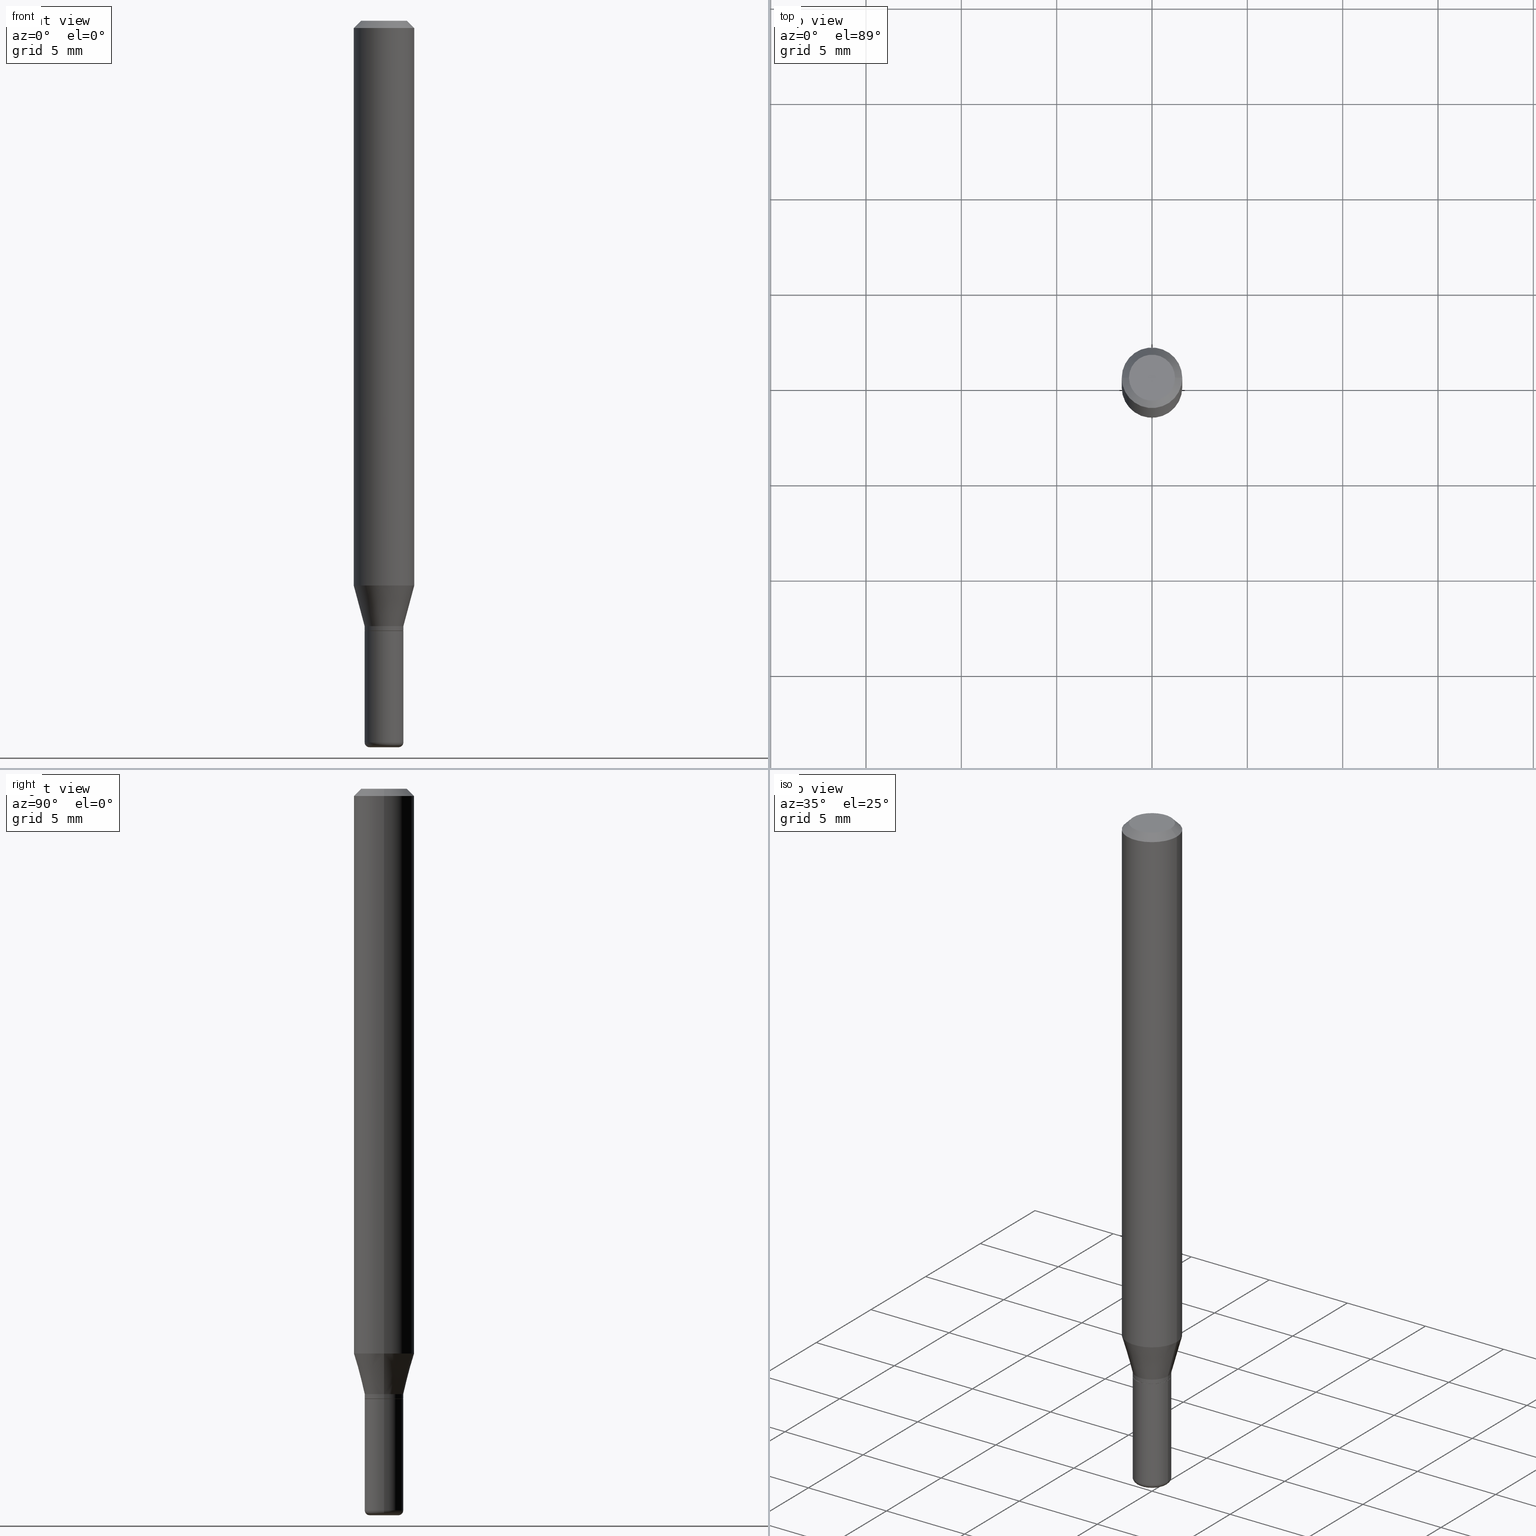
[diagram: canonical four-view strip — front | top / right | iso, engineering-drawing reading convention]
A machine part, canonical four-view strip (front | top / right | iso — engineering-drawing reading convention). The complete STEP part file that produces these views, byte-faithful:
ISO-10303-21;
HEADER;
FILE_DESCRIPTION (( 'STEP AP203' ),
    '1' );
FILE_NAME ('08562.STEP',
    '2024-02-29T19:48:05',
    ( '' ),
    ( '' ),
    'SwSTEP 2.0',
    'SolidWorks 2023',
    '' );
FILE_SCHEMA (( 'CONFIG_CONTROL_DESIGN' ));
ENDSEC;

DATA;
#1 = CARTESIAN_POINT ( 'NONE',  ( -0.02999999999999999889, -4.989144374148257860E-15, -1.490000000000000213 ) ) ;
#2 = EDGE_CURVE ( 'NONE', #372, #59, #259, .T. ) ;
#3 = COORDINATED_UNIVERSAL_TIME_OFFSET ( 5, 0, .BEHIND. ) ;
#4 = AXIS2_PLACEMENT_3D ( 'NONE', #15, #496, #107 ) ;
#5 = CIRCLE ( 'NONE', #278, 0.03999999999999995920 ) ;
#6 = FACE_OUTER_BOUND ( 'NONE', #110, .T. ) ;
#7 = DIRECTION ( 'NONE',  ( 1.000000000000000000, -6.982962677686279332E-15, 0.000000000000000000 ) ) ;
#8 = ADVANCED_FACE ( 'NONE', ( #97 ), #436, .T. ) ;
#9 = ORIENTED_EDGE ( 'NONE', *, *, #330, .T. ) ;
#10 = VERTEX_POINT ( 'NONE', #253 ) ;
#11 = ORIENTED_EDGE ( 'NONE', *, *, #74, .T. ) ;
#12 = EDGE_CURVE ( 'NONE', #452, #290, #286, .T. ) ;
#13 = ORIENTED_EDGE ( 'NONE', *, *, #2, .T. ) ;
#14 = EDGE_LOOP ( 'NONE', ( #371, #332, #105, #285 ) ) ;
#15 = CARTESIAN_POINT ( 'NONE',  ( 3.316907271900976589E-16, 0.04750000000000000749, -2.925296391183627249E-17 ) ) ;
#16 = CIRCLE ( 'NONE', #517, 0.06250000000000000000 ) ;
#17 = VERTEX_POINT ( 'NONE', #291 ) ;
#18 = PLANE ( 'NONE',  #138 ) ;
#19 = CARTESIAN_POINT ( 'NONE',  ( -0.03999999999999997308, 2.842170943040398830E-16, -1.967574036101961108E-30 ) ) ;
#20 = ORIENTED_EDGE ( 'NONE', *, *, #506, .T. ) ;
#21 = ORIENTED_EDGE ( 'NONE', *, *, #237, .F. ) ;
#22 = DIRECTION ( 'NONE',  ( 1.000000000000000000, -6.982962677686276177E-15, 0.000000000000000000 ) ) ;
#23 = ORIENTED_EDGE ( 'NONE', *, *, #337, .T. ) ;
#24 = EDGE_LOOP ( 'NONE', ( #189, #256, #13, #64 ) ) ;
#25 = CARTESIAN_POINT ( 'NONE',  ( -6.680649051745406845E-45, 9.538196290434862081E-31, 2.731847993664263218E-16 ) ) ;
#26 = FACE_OUTER_BOUND ( 'NONE', #143, .T. ) ;
#27 = DIRECTION ( 'NONE',  ( 0.000000000000000000, 0.000000000000000000, 1.000000000000000000 ) ) ;
#28 = VECTOR ( 'NONE', #324, 39.37007874015748143 ) ;
#29 = AXIS2_PLACEMENT_3D ( 'NONE', #312, #35, #82 ) ;
#30 = LOCAL_TIME ( 14, 48, 5.000000000000000000, #512 ) ;
#31 = ORIENTED_EDGE ( 'NONE', *, *, #506, .F. ) ;
#32 = CARTESIAN_POINT ( 'NONE',  ( 3.081290695793272291E-29, -4.399266486942364120E-15, -1.260000000000000231 ) ) ;
#33 = PERSON_AND_ORGANIZATION ( #322, #232 ) ;
#34 = LINE ( 'NONE', #471, #407 ) ;
#35 = DIRECTION ( 'NONE',  ( -2.445468806185136597E-29, 3.491481338843145583E-15, 1.000000000000000000 ) ) ;
#36 = EDGE_CURVE ( 'NONE', #319, #372, #349, .T. ) ;
#37 = DIRECTION ( 'NONE',  ( 1.000000000000000000, -6.982962677686265922E-15, 4.876176775795935793E-29 ) ) ;
#38 = PERSON_AND_ORGANIZATION_ROLE ( 'design_owner' ) ;
#39 = APPLICATION_CONTEXT ( 'configuration controlled 3d designs of mechanical parts and assemblies' ) ;
#40 = DIRECTION ( 'NONE',  ( -2.445468806185136597E-29, 3.491481338843145583E-15, 1.000000000000000000 ) ) ;
#41 = CONICAL_SURFACE ( 'NONE', #224, 0.03949999999999997263, 0.7853981633972775267 ) ;
#42 = CARTESIAN_POINT ( 'NONE',  ( 3.081290695793272291E-29, -4.399266486942364120E-15, -1.260000000000000231 ) ) ;
#43 =( NAMED_UNIT ( * ) SI_UNIT ( $, .STERADIAN. ) SOLID_ANGLE_UNIT ( ) );
#44 = LINE ( 'NONE', #515, #431 ) ;
#45 = DIRECTION ( 'NONE',  ( -2.445468806185136597E-29, 3.491481338843145583E-15, 1.000000000000000000 ) ) ;
#46 = CC_DESIGN_PERSON_AND_ORGANIZATION_ASSIGNMENT ( #113, #38, ( #317 ) ) ;
#47 = AXIS2_PLACEMENT_3D ( 'NONE', #103, #254, #112 ) ;
#48 = DIRECTION ( 'NONE',  ( -2.445468806185136877E-29, 3.491481338843145188E-15, 1.000000000000000000 ) ) ;
#49 = ADVANCED_FACE ( 'NONE', ( #368 ), #18, .F. ) ;
#50 = DIRECTION ( 'NONE',  ( -2.445468806185136597E-29, 3.491481338843145583E-15, 1.000000000000000000 ) ) ;
#51 = EDGE_CURVE ( 'NONE', #367, #111, #343, .T. ) ;
#52 = FACE_OUTER_BOUND ( 'NONE', #492, .T. ) ;
#53 = AXIS2_PLACEMENT_3D ( 'NONE', #146, #176, #288 ) ;
#54 = ORIENTED_EDGE ( 'NONE', *, *, #98, .F. ) ;
#55 = APPROVAL ( #399, 'UNSPECIFIED' ) ;
#56 = DIRECTION ( 'NONE',  ( 1.000000000000000000, -6.982962677686264344E-15, 0.000000000000000000 ) ) ;
#57 = ORIENTED_EDGE ( 'NONE', *, *, #86, .F. ) ;
#58 = ORIENTED_EDGE ( 'NONE', *, *, #499, .F. ) ;
#59 = VERTEX_POINT ( 'NONE', #66 ) ;
#60 = DIRECTION ( 'NONE',  ( 1.000000000000000000, -6.982962677686279332E-15, 0.000000000000000000 ) ) ;
#61 = APPROVAL ( #465, 'UNSPECIFIED' ) ;
#62 = CARTESIAN_POINT ( 'NONE',  ( 3.081290695793272291E-29, -4.399266486942364120E-15, -1.260000000000000231 ) ) ;
#63 = VECTOR ( 'NONE', #130, 39.37007874015748143 ) ;
#64 = ORIENTED_EDGE ( 'NONE', *, *, #333, .F. ) ;
#65 = CARTESIAN_POINT ( 'NONE',  ( 0.03999999999999995920, -4.643670180661383298E-15, -1.250000000000000000 ) ) ;
#66 = CARTESIAN_POINT ( 'NONE',  ( 0.06250000000000000000, -4.507603161528896392E-15, -1.166028856829700144 ) ) ;
#67 = ORIENTED_EDGE ( 'NONE', *, *, #126, .F. ) ;
#68 = FACE_OUTER_BOUND ( 'NONE', #485, .T. ) ;
#69 = ADVANCED_FACE ( 'NONE', ( #218 ), #414, .F. ) ;
#70 = DATE_AND_TIME ( #424, #194 ) ;
#71 = ORIENTED_EDGE ( 'NONE', *, *, #499, .T. ) ;
#72 = DIRECTION ( 'NONE',  ( 1.000000000000000000, -6.982962677686266711E-15, 4.876176775795935793E-29 ) ) ;
#73 = ORIENTED_EDGE ( 'NONE', *, *, #474, .F. ) ;
#74 = EDGE_CURVE ( 'NONE', #420, #106, #391, .T. ) ;
#75 = CARTESIAN_POINT ( 'NONE',  ( 0.000000000000000000, 0.000000000000000000, 0.000000000000000000 ) ) ;
#76 = VECTOR ( 'NONE', #432, 39.37007874015748143 ) ;
#77 = CARTESIAN_POINT ( 'NONE',  ( 0.03000000000000000583, -5.446710888595306494E-15, -1.500000000000000222 ) ) ;
#78 = CIRCLE ( 'NONE', #356, 0.04750000000000000749 ) ;
#79 = AXIS2_PLACEMENT_3D ( 'NONE', #75, #27, #201 ) ;
#80 = DIRECTION ( 'NONE',  ( -2.445468806185136597E-29, 3.491481338843145583E-15, 1.000000000000000000 ) ) ;
#81 = CARTESIAN_POINT ( 'NONE',  ( 3.081290695793272291E-29, -4.399266486942364120E-15, -1.260000000000000231 ) ) ;
#82 = DIRECTION ( 'NONE',  ( 1.000000000000000000, -6.982962677686268288E-15, 4.876176775795935793E-29 ) ) ;
#83 = CARTESIAN_POINT ( 'NONE',  ( 0.04000000000000000083, -4.678584994049814947E-15, -1.260000000000000231 ) ) ;
#84 = CIRCLE ( 'NONE', #53, 0.009999999999999948166 ) ;
#85 = AXIS2_PLACEMENT_3D ( 'NONE', #352, #316, #477 ) ;
#86 = EDGE_CURVE ( 'NONE', #17, #420, #374, .T. ) ;
#87 = CC_DESIGN_APPROVAL ( #345, ( #304 ) ) ;
#88 = APPROVAL_ROLE ( '' ) ;
#89 = CARTESIAN_POINT ( 'NONE',  ( 2.851487196488746564E-29, -4.071167994173503933E-15, -1.166028856829700144 ) ) ;
#90 = FACE_OUTER_BOUND ( 'NONE', #250, .T. ) ;
#91 = CARTESIAN_POINT ( 'NONE',  ( -0.03999999999999996614, 2.842170943040398337E-16, -1.967574036101960757E-30 ) ) ;
#92 = EDGE_CURVE ( 'NONE', #220, #10, #174, .T. ) ;
#93 = COORDINATED_UNIVERSAL_TIME_OFFSET ( 5, 0, .BEHIND. ) ;
#94 = DIRECTION ( 'NONE',  ( 1.000000000000000000, -6.982962677686266711E-15, 0.000000000000000000 ) ) ;
#95 = CIRCLE ( 'NONE', #241, 0.03000000000000000583 ) ;
#96 = EDGE_CURVE ( 'NONE', #154, #180, #148, .T. ) ;
#97 = FACE_OUTER_BOUND ( 'NONE', #24, .T. ) ;
#98 = EDGE_CURVE ( 'NONE', #154, #491, #398, .T. ) ;
#99 = DIRECTION ( 'NONE',  ( -2.445468806185136597E-29, 3.491481338843145583E-15, 1.000000000000000000 ) ) ;
#100 = CONICAL_SURFACE ( 'NONE', #134, 0.06250000000000000000, 0.7853981633974488341 ) ;
#101 = ORIENTED_EDGE ( 'NONE', *, *, #237, .T. ) ;
#102 = VERTEX_POINT ( 'NONE', #216 ) ;
#103 = CARTESIAN_POINT ( 'NONE',  ( 0.000000000000000000, 0.000000000000000000, 0.000000000000000000 ) ) ;
#104 = EDGE_LOOP ( 'NONE', ( #57, #498, #455, #101 ) ) ;
#105 = ORIENTED_EDGE ( 'NONE', *, *, #337, .F. ) ;
#106 = VERTEX_POINT ( 'NONE', #136 ) ;
#107 = DIRECTION ( 'NONE',  ( -1.000000000000000000, 6.982962677686265922E-15, -4.876176775795935793E-29 ) ) ;
#108 = AXIS2_PLACEMENT_3D ( 'NONE', #408, #144, #248 ) ;
#109 = AXIS2_PLACEMENT_3D ( 'NONE', #81, #196, #268 ) ;
#110 = EDGE_LOOP ( 'NONE', ( #226, #150, #177, #54 ) ) ;
#111 = VERTEX_POINT ( 'NONE', #179 ) ;
#112 = DIRECTION ( 'NONE',  ( 1.000000000000000000, -6.982962677686266711E-15, 4.876176775795935793E-29 ) ) ;
#113 = PERSON_AND_ORGANIZATION ( #322, #232 ) ;
#114 = ORIENTED_EDGE ( 'NONE', *, *, #96, .T. ) ;
#115 = COORDINATED_UNIVERSAL_TIME_OFFSET ( 5, 0, .BEHIND. ) ;
#116 = ADVANCED_FACE ( 'NONE', ( #52 ), #430, .T. ) ;
#117 = AXIS2_PLACEMENT_3D ( 'NONE', #42, #388, #37 ) ;
#118 = DIRECTION ( 'NONE',  ( 1.000000000000000000, -6.982962677686276177E-15, 0.000000000000000000 ) ) ;
#119 =( CONVERSION_BASED_UNIT ( 'INCH', #380 ) LENGTH_UNIT ( ) NAMED_UNIT ( #493 ) );
#120 = FACE_OUTER_BOUND ( 'NONE', #412, .T. ) ;
#121 = EDGE_CURVE ( 'NONE', #290, #491, #84, .T. ) ;
#122 = CALENDAR_DATE ( 2024, 29, 2 ) ;
#123 = VECTOR ( 'NONE', #215, 39.37007874015748143 ) ;
#124 = AXIS2_PLACEMENT_3D ( 'NONE', #347, #441, #207 ) ;
#125 = DIRECTION ( 'NONE',  ( -2.445468806185136877E-29, 3.491481338843145188E-15, 1.000000000000000000 ) ) ;
#126 = EDGE_CURVE ( 'NONE', #111, #367, #210, .T. ) ;
#127 = CARTESIAN_POINT ( 'NONE',  ( 0.03999999999999997308, -4.676839253380393443E-15, -1.259500000000000064 ) ) ;
#128 = CARTESIAN_POINT ( 'NONE',  ( 0.06250000000000000000, -4.364351673553916694E-16, 3.047610484872459871E-30 ) ) ;
#129 = DATE_AND_TIME ( #438, #299 ) ;
#130 = DIRECTION ( 'NONE',  ( -2.445468806185136877E-29, 3.491481338843145188E-15, 1.000000000000000000 ) ) ;
#131 = PRODUCT_DEFINITION_SHAPE ( 'NONE', 'NONE',  #304 ) ;
#132 = EDGE_CURVE ( 'NONE', #59, #178, #511, .T. ) ;
#133 = VECTOR ( 'NONE', #223, 39.37007874015748143 ) ;
#134 = AXIS2_PLACEMENT_3D ( 'NONE', #339, #190, #383 ) ;
#135 = ORIENTED_EDGE ( 'NONE', *, *, #416, .T. ) ;
#136 = CARTESIAN_POINT ( 'NONE',  ( -0.06250000000000000000, -1.617680897278012101E-15, -0.01499999999999970281 ) ) ;
#137 = ORIENTED_EDGE ( 'NONE', *, *, #51, .T. ) ;
#138 = AXIS2_PLACEMENT_3D ( 'NONE', #185, #212, #186 ) ;
#139 = DIRECTION ( 'NONE',  ( 1.000000000000000000, -6.982962677686268288E-15, 0.000000000000000000 ) ) ;
#140 = AXIS2_PLACEMENT_3D ( 'NONE', #366, #251, #183 ) ;
#141 = ADVANCED_FACE ( 'NONE', ( #293 ), #329, .T. ) ;
#142 = LOCAL_TIME ( 14, 48, 5.000000000000000000, #93 ) ;
#143 = EDGE_LOOP ( 'NONE', ( #58, #450, #11, #187 ) ) ;
#144 = DIRECTION ( 'NONE',  ( -2.445468806185136597E-29, 3.491481338843145583E-15, 1.000000000000000000 ) ) ;
#145 = EDGE_CURVE ( 'NONE', #319, #178, #266, .T. ) ;
#146 = CARTESIAN_POINT ( 'NONE',  ( 0.02999999999999999889, -5.411796075206875633E-15, -1.490000000000000213 ) ) ;
#147 = EDGE_LOOP ( 'NONE', ( #287, #326, #9, #21 ) ) ;
#148 = LINE ( 'NONE', #19, #28 ) ;
#149 = EDGE_CURVE ( 'NONE', #180, #501, #461, .T. ) ;
#150 = ORIENTED_EDGE ( 'NONE', *, *, #12, .T. ) ;
#151 = CLOSED_SHELL ( 'NONE', ( #197, #405, #401, #377, #116, #8, #141, #192, #69, #445, #181, #242 ) ) ;
#152 = MECHANICAL_CONTEXT ( 'NONE', #39, 'mechanical' ) ;
#153 = APPROVAL_PERSON_ORGANIZATION ( #480, #55, #88 ) ;
#154 = VERTEX_POINT ( 'NONE', #478 ) ;
#155 = CARTESIAN_POINT ( 'NONE',  ( 3.081290695793272291E-29, -4.399266486942364120E-15, -1.260000000000000231 ) ) ;
#156 = APPROVAL_ROLE ( '' ) ;
#157 = DIRECTION ( 'NONE',  ( -2.445468806185136597E-29, 3.491481338843145583E-15, 1.000000000000000000 ) ) ;
#158 = PERSON_AND_ORGANIZATION ( #322, #232 ) ;
#159 = UNCERTAINTY_MEASURE_WITH_UNIT (LENGTH_MEASURE( 1.000000000000000082E-05 ), #119, 'distance_accuracy_value', 'NONE');
#160 = CARTESIAN_POINT ( 'NONE',  ( -0.04000000000000000083, -4.516569746605286181E-15, -1.260000000000000231 ) ) ;
#161 = CC_DESIGN_DATE_AND_TIME_ASSIGNMENT ( #70, #193, ( #304 ) ) ;
#162 = PERSON_AND_ORGANIZATION ( #322, #232 ) ;
#163 = VECTOR ( 'NONE', #272, 39.37007874015748143 ) ;
#164 = DIRECTION ( 'NONE',  ( -2.445468806185136597E-29, 3.491481338843145583E-15, 1.000000000000000000 ) ) ;
#165 = DIRECTION ( 'NONE',  ( -0.7071067811865479058, 2.468850131082261005E-15, -0.7071067811865471286 ) ) ;
#166 = CC_DESIGN_PERSON_AND_ORGANIZATION_ASSIGNMENT ( #33, #340, ( #279 ) ) ;
#167 = DIRECTION ( 'NONE',  ( -2.445468806185136597E-29, 3.491481338843145583E-15, 1.000000000000000000 ) ) ;
#168 = EDGE_CURVE ( 'NONE', #10, #111, #44, .T. ) ;
#169 = AXIS2_PLACEMENT_3D ( 'NONE', #472, #429, #236 ) ;
#170 = DIRECTION ( 'NONE',  ( 1.000000000000000000, -6.982962677686262766E-15, 0.000000000000000000 ) ) ;
#171 = PERSON_AND_ORGANIZATION_ROLE ( 'classification_officer' ) ;
#172 = SHAPE_DEFINITION_REPRESENTATION ( #131, #239 ) ;
#173 = CC_DESIGN_PERSON_AND_ORGANIZATION_ASSIGNMENT ( #249, #171, ( #419 ) ) ;
#174 = CIRCLE ( 'NONE', #257, 0.03949999999999997263 ) ;
#175 = VECTOR ( 'NONE', #305, 39.37007874015748143 ) ;
#176 = DIRECTION ( 'NONE',  ( -6.982962677686266711E-15, -1.000000000000000000, 3.491481338843145583E-15 ) ) ;
#177 = ORIENTED_EDGE ( 'NONE', *, *, #121, .T. ) ;
#178 = VERTEX_POINT ( 'NONE', #510 ) ;
#179 = CARTESIAN_POINT ( 'NONE',  ( -0.03999999999999997308, -4.113303651968902290E-15, -1.259500000000000064 ) ) ;
#180 = VERTEX_POINT ( 'NONE', #160 ) ;
#181 = ADVANCED_FACE ( 'NONE', ( #387 ), #191, .T. ) ;
#182 = ORIENTED_EDGE ( 'NONE', *, *, #74, .F. ) ;
#183 = DIRECTION ( 'NONE',  ( 1.000000000000000000, -6.982962677686262766E-15, 0.000000000000000000 ) ) ;
#184 = ORIENTED_EDGE ( 'NONE', *, *, #145, .T. ) ;
#185 = CARTESIAN_POINT ( 'NONE',  ( 3.582686580359766038E-29, -5.359686688179453325E-15, -1.500000000000000222 ) ) ;
#186 = DIRECTION ( 'NONE',  ( 1.000000000000000000, -6.982962677686265922E-15, 4.876176775795935793E-29 ) ) ;
#187 = ORIENTED_EDGE ( 'NONE', *, *, #509, .F. ) ;
#188 = CARTESIAN_POINT ( 'NONE',  ( 3.643748521215853910E-29, -5.202307194876288105E-15, -1.490000000000000213 ) ) ;
#189 = ORIENTED_EDGE ( 'NONE', *, *, #145, .F. ) ;
#190 = DIRECTION ( 'NONE',  ( 2.445468806185136597E-29, -3.491481338843145583E-15, -1.000000000000000000 ) ) ;
#191 = CONICAL_SURFACE ( 'NONE', #109, 0.03949999999999997263, 0.7853981633972775267 ) ;
#192 = ADVANCED_FACE ( 'NONE', ( #508 ), #483, .T. ) ;
#193 = DATE_TIME_ROLE ( 'creation_date' ) ;
#194 = LOCAL_TIME ( 14, 48, 5.000000000000000000, #261 ) ;
#195 = DIRECTION ( 'NONE',  ( 1.000000000000000000, -6.982962677686276177E-15, 0.000000000000000000 ) ) ;
#196 = DIRECTION ( 'NONE',  ( -2.445468806185136597E-29, 3.491481338843145583E-15, 1.000000000000000000 ) ) ;
#197 = ADVANCED_FACE ( 'NONE', ( #308 ), #435, .T. ) ;
#198 = CYLINDRICAL_SURFACE ( 'NONE', #230, 0.03999999999999997308 ) ;
#199 = AXIS2_PLACEMENT_3D ( 'NONE', #283, #99, #409 ) ;
#200 = CYLINDRICAL_SURFACE ( 'NONE', #258, 0.03999999999999996614 ) ;
#201 = DIRECTION ( 'NONE',  ( 1.000000000000000000, 0.000000000000000000, 0.000000000000000000 ) ) ;
#202 = CC_DESIGN_DATE_AND_TIME_ASSIGNMENT ( #280, #411, ( #419 ) ) ;
#203 = EDGE_CURVE ( 'NONE', #10, #220, #211, .T. ) ;
#204 = FACE_OUTER_BOUND ( 'NONE', #222, .T. ) ;
#205 = CIRCLE ( 'NONE', #418, 0.04750000000000000749 ) ;
#206 = DIRECTION ( 'NONE',  ( -2.445468806185136597E-29, 3.491481338843145583E-15, 1.000000000000000000 ) ) ;
#207 = DIRECTION ( 'NONE',  ( 1.000000000000000000, -6.982962677686269077E-15, 4.883557194083114022E-29 ) ) ;
#208 = CARTESIAN_POINT ( 'NONE',  ( 0.000000000000000000, 0.000000000000000000, 0.000000000000000000 ) ) ;
#209 = DIRECTION ( 'NONE',  ( 1.000000000000000000, -6.982962677686266711E-15, 4.852736867747365086E-29 ) ) ;
#210 = CIRCLE ( 'NONE', #199, 0.03999999999999997308 ) ;
#211 = CIRCLE ( 'NONE', #309, 0.03949999999999997263 ) ;
#212 = DIRECTION ( 'NONE',  ( -2.438088387897960049E-29, 3.491481338843145188E-15, 1.000000000000000000 ) ) ;
#213 = APPROVAL_PERSON_ORGANIZATION ( #162, #345, #473 ) ;
#214 = ORIENTED_EDGE ( 'NONE', *, *, #313, .F. ) ;
#215 = DIRECTION ( 'NONE',  ( 0.2588190451025205174, 1.565188264969628476E-15, 0.9659258262890684232 ) ) ;
#216 = CARTESIAN_POINT ( 'NONE',  ( -0.04750000000000000749, 3.578768372314221353E-16, 2.731847993664239060E-16 ) ) ;
#217 = ORIENTED_EDGE ( 'NONE', *, *, #330, .F. ) ;
#218 = FACE_OUTER_BOUND ( 'NONE', #247, .T. ) ;
#219 = PRODUCT_RELATED_PRODUCT_CATEGORY ( 'detail', '', ( #317 ) ) ;
#220 = VERTEX_POINT ( 'NONE', #233 ) ;
#221 = AXIS2_PLACEMENT_3D ( 'NONE', #244, #421, #364 ) ;
#222 = EDGE_LOOP ( 'NONE', ( #295, #262, #182, #217 ) ) ;
#223 = DIRECTION ( 'NONE',  ( 0.7071067811865479058, -7.319954787623257623E-15, -0.7071067811865471286 ) ) ;
#224 = AXIS2_PLACEMENT_3D ( 'NONE', #32, #507, #195 ) ;
#225 = CC_DESIGN_APPROVAL ( #61, ( #279 ) ) ;
#226 = ORIENTED_EDGE ( 'NONE', *, *, #354, .F. ) ;
#227 = DIRECTION ( 'NONE',  ( -2.445468806185136597E-29, 3.491481338843145583E-15, 1.000000000000000000 ) ) ;
#228 = ORIENTED_EDGE ( 'NONE', *, *, #168, .T. ) ;
#229 = APPROVAL_DATE_TIME ( #269, #345 ) ;
#230 = AXIS2_PLACEMENT_3D ( 'NONE', #336, #446, #403 ) ;
#231 = CALENDAR_DATE ( 2024, 29, 2 ) ;
#232 = ORGANIZATION ( 'UNSPECIFIED', 'UNSPECIFIED', '' ) ;
#233 = CARTESIAN_POINT ( 'NONE',  ( 0.03949999999999997263, -4.675093512710971939E-15, -1.260000000000000231 ) ) ;
#234 = DIRECTION ( 'NONE',  ( 2.445468806185136597E-29, -3.491481338843145583E-15, -1.000000000000000000 ) ) ;
#235 = APPLICATION_PROTOCOL_DEFINITION ( 'international standard', 'config_control_design', 1994, #39 ) ;
#236 = DIRECTION ( 'NONE',  ( 1.000000000000000000, -6.982962677686266711E-15, 0.000000000000000000 ) ) ;
#237 = EDGE_CURVE ( 'NONE', #106, #420, #369, .T. ) ;
#238 = VECTOR ( 'NONE', #125, 39.37007874015748143 ) ;
#239 = ADVANCED_BREP_SHAPE_REPRESENTATION ( '08562', ( #255, #443, #79 ), #358 ) ;
#240 = DIRECTION ( 'NONE',  ( -1.000000000000000000, 7.105427357600962416E-15, 0.000000000000000000 ) ) ;
#241 = AXIS2_PLACEMENT_3D ( 'NONE', #348, #45, #94 ) ;
#242 = ADVANCED_FACE ( 'NONE', ( #120 ), #200, .T. ) ;
#243 = DIRECTION ( 'NONE',  ( -2.445468806185136597E-29, 3.491481338843145583E-15, 1.000000000000000000 ) ) ;
#244 = CARTESIAN_POINT ( 'NONE',  ( 3.056836007731421306E-29, -4.364351673553932471E-15, -1.250000000000000000 ) ) ;
#245 = VECTOR ( 'NONE', #48, 39.37007874015748143 ) ;
#246 = DIRECTION ( 'NONE',  ( -2.445468806185136597E-29, 3.491481338843145583E-15, 1.000000000000000000 ) ) ;
#247 = EDGE_LOOP ( 'NONE', ( #495, #71 ) ) ;
#248 = DIRECTION ( 'NONE',  ( 1.000000000000000000, -6.982962677686266711E-15, 0.000000000000000000 ) ) ;
#249 = PERSON_AND_ORGANIZATION ( #322, #232 ) ;
#250 = EDGE_LOOP ( 'NONE', ( #23, #114, #301, #363 ) ) ;
#251 = DIRECTION ( 'NONE',  ( -2.445468806185136597E-29, 3.491481338843145583E-15, 1.000000000000000000 ) ) ;
#252 = ORIENTED_EDGE ( 'NONE', *, *, #474, .T. ) ;
#253 = CARTESIAN_POINT ( 'NONE',  ( -0.03949999999999997263, -4.115952879143013491E-15, -1.260000000000000231 ) ) ;
#254 = DIRECTION ( 'NONE',  ( -2.445468806185136597E-29, 3.491481338843145583E-15, 1.000000000000000000 ) ) ;
#255 = MANIFOLD_SOLID_BREP ( 'Body-Move/Copy2[1]', #447 ) ;
#256 = ORIENTED_EDGE ( 'NONE', *, *, #36, .T. ) ;
#257 = AXIS2_PLACEMENT_3D ( 'NONE', #62, #451, #22 ) ;
#258 = AXIS2_PLACEMENT_3D ( 'NONE', #390, #40, #264 ) ;
#259 = LINE ( 'NONE', #65, #123 ) ;
#260 = DIRECTION ( 'NONE',  ( -2.445468806185136597E-29, 3.491481338843145583E-15, 1.000000000000000000 ) ) ;
#261 = COORDINATED_UNIVERSAL_TIME_OFFSET ( 5, 0, .BEHIND. ) ;
#262 = ORIENTED_EDGE ( 'NONE', *, *, #351, .T. ) ;
#263 = DIRECTION ( 'NONE',  ( 0.7071067811864267805, -2.468850131080992517E-15, 0.7071067811866682540 ) ) ;
#264 = DIRECTION ( 'NONE',  ( 1.000000000000000000, -6.982962677686268288E-15, 4.876176775795935793E-29 ) ) ;
#265 = CARTESIAN_POINT ( 'NONE',  ( 0.000000000000000000, 0.000000000000000000, 0.000000000000000000 ) ) ;
#266 = LINE ( 'NONE', #426, #76 ) ;
#267 = VECTOR ( 'NONE', #263, 39.37007874015748143 ) ;
#268 = DIRECTION ( 'NONE',  ( 1.000000000000000000, -6.982962677686276177E-15, 0.000000000000000000 ) ) ;
#269 = DATE_AND_TIME ( #122, #30 ) ;
#270 = APPROVAL_DATE_TIME ( #129, #55 ) ;
#271 = CC_DESIGN_SECURITY_CLASSIFICATION ( #419, ( #279 ) ) ;
#272 = DIRECTION ( 'NONE',  ( -2.445468806185136877E-29, 3.491481338843145188E-15, 1.000000000000000000 ) ) ;
#273 = CARTESIAN_POINT ( 'NONE',  ( 0.03999999999999995920, -4.643670180661383298E-15, -1.250000000000000000 ) ) ;
#274 = DIRECTION ( 'NONE',  ( 1.000000000000000000, -6.982962677686268288E-15, 0.000000000000000000 ) ) ;
#275 = CC_DESIGN_PERSON_AND_ORGANIZATION_ASSIGNMENT ( #338, #462, ( #304 ) ) ;
#276 = DIRECTION ( 'NONE',  ( -2.445468806185136597E-29, 3.491481338843145583E-15, 1.000000000000000000 ) ) ;
#277 = AXIS2_PLACEMENT_3D ( 'NONE', #320, #227, #334 ) ;
#278 = AXIS2_PLACEMENT_3D ( 'NONE', #281, #449, #357 ) ;
#279 = PRODUCT_DEFINITION_FORMATION_WITH_SPECIFIED_SOURCE ( 'ANY', '', #317, .NOT_KNOWN. ) ;
#280 = DATE_AND_TIME ( #394, #142 ) ;
#281 = CARTESIAN_POINT ( 'NONE',  ( 3.056836007731421306E-29, -4.364351673553932471E-15, -1.250000000000000000 ) ) ;
#282 = ORIENTED_EDGE ( 'NONE', *, *, #168, .F. ) ;
#283 = CARTESIAN_POINT ( 'NONE',  ( 3.080067961390179490E-29, -4.397520746272941828E-15, -1.259500000000000064 ) ) ;
#284 = ORIENTED_EDGE ( 'NONE', *, *, #149, .F. ) ;
#285 = ORIENTED_EDGE ( 'NONE', *, *, #121, .F. ) ;
#286 = CIRCLE ( 'NONE', #108, 0.03000000000000000583 ) ;
#287 = ORIENTED_EDGE ( 'NONE', *, *, #351, .F. ) ;
#288 = DIRECTION ( 'NONE',  ( 1.000000000000000000, -6.982962677686272233E-15, 0.000000000000000000 ) ) ;
#289 = APPROVAL_PERSON_ORGANIZATION ( #504, #61, #156 ) ;
#290 = VERTEX_POINT ( 'NONE', #77 ) ;
#291 = CARTESIAN_POINT ( 'NONE',  ( 0.04750000000000000749, -4.035134999187568762E-16, 2.731847993664288856E-16 ) ) ;
#292 = ORIENTED_EDGE ( 'NONE', *, *, #365, .T. ) ;
#293 = FACE_OUTER_BOUND ( 'NONE', #147, .T. ) ;
#294 = ORIENTED_EDGE ( 'NONE', *, *, #514, .T. ) ;
#295 = ORIENTED_EDGE ( 'NONE', *, *, #132, .T. ) ;
#296 = DIRECTION ( 'NONE',  ( -2.445468806185136597E-29, 3.491481338843145583E-15, 1.000000000000000000 ) ) ;
#297 = ORIENTED_EDGE ( 'NONE', *, *, #365, .F. ) ;
#298 = CIRCLE ( 'NONE', #476, 0.03999999999999995226 ) ;
#299 = LOCAL_TIME ( 14, 48, 5.000000000000000000, #3 ) ;
#300 = APPLICATION_PROTOCOL_DEFINITION ( 'international standard', 'config_control_design', 1994, #311 ) ;
#301 = ORIENTED_EDGE ( 'NONE', *, *, #416, .F. ) ;
#302 = DIRECTION ( 'NONE',  ( -2.445468806185136597E-29, 3.491481338843145583E-15, 1.000000000000000000 ) ) ;
#303 = ORIENTED_EDGE ( 'NONE', *, *, #98, .T. ) ;
#304 = PRODUCT_DEFINITION ( 'UNKNOWN', '', #279, #463 ) ;
#305 = DIRECTION ( 'NONE',  ( -2.445468806185136877E-29, 3.491481338843145188E-15, 1.000000000000000000 ) ) ;
#306 = DIRECTION ( 'NONE',  ( 1.000000000000000000, -6.982962677686259611E-15, 0.000000000000000000 ) ) ;
#307 = DATE_AND_TIME ( #231, #518 ) ;
#308 = FACE_OUTER_BOUND ( 'NONE', #331, .T. ) ;
#309 = AXIS2_PLACEMENT_3D ( 'NONE', #342, #164, #118 ) ;
#310 = APPROVAL_STATUS ( 'not_yet_approved' ) ;
#311 = APPLICATION_CONTEXT ( 'configuration controlled 3d designs of mechanical parts and assemblies' ) ;
#312 = CARTESIAN_POINT ( 'NONE',  ( 0.000000000000000000, 0.000000000000000000, 0.000000000000000000 ) ) ;
#313 = EDGE_CURVE ( 'NONE', #367, #372, #516, .T. ) ;
#314 = CARTESIAN_POINT ( 'NONE',  ( 0.03999999999999996614, -2.793185071074504811E-16, 1.950470710318372636E-30 ) ) ;
#315 = AXIS2_PLACEMENT_3D ( 'NONE', #155, #157, #306 ) ;
#316 = DIRECTION ( 'NONE',  ( 2.438088387897960049E-29, -3.491481338843145188E-15, -1.000000000000000000 ) ) ;
#317 = PRODUCT ( '08562', '08562', '', ( #152 ) ) ;
#318 = SECURITY_CLASSIFICATION_LEVEL ( 'unclassified' ) ;
#319 = VERTEX_POINT ( 'NONE', #353 ) ;
#320 = CARTESIAN_POINT ( 'NONE',  ( 3.668203209277632395E-31, -5.237222008264614861E-17, -0.01499999999999970281 ) ) ;
#321 = DIRECTION ( 'NONE',  ( -2.445468806185136597E-29, 3.491481338843145583E-15, 1.000000000000000000 ) ) ;
#322 = PERSON ( 'UNSPECIFIED', 'UNSPECIFIED', 'UNSPECIFIED', ('UNSPECIFIED'), ('UNSPECIFIED'), ('UNSPECIFIED') ) ;
#323 = ORIENTED_EDGE ( 'NONE', *, *, #36, .F. ) ;
#324 = DIRECTION ( 'NONE',  ( -2.445468806185136877E-29, 3.491481338843145188E-15, 1.000000000000000000 ) ) ;
#325 = EDGE_LOOP ( 'NONE', ( #454, #328 ) ) ;
#326 = ORIENTED_EDGE ( 'NONE', *, *, #333, .T. ) ;
#327 = AXIS2_PLACEMENT_3D ( 'NONE', #423, #80, #378 ) ;
#328 = ORIENTED_EDGE ( 'NONE', *, *, #12, .F. ) ;
#329 = CYLINDRICAL_SURFACE ( 'NONE', #47, 0.06250000000000000000 ) ;
#330 = EDGE_CURVE ( 'NONE', #59, #420, #475, .T. ) ;
#331 = EDGE_LOOP ( 'NONE', ( #137, #292, #73, #214 ) ) ;
#332 = ORIENTED_EDGE ( 'NONE', *, *, #354, .T. ) ;
#333 = EDGE_CURVE ( 'NONE', #178, #59, #16, .T. ) ;
#334 = DIRECTION ( 'NONE',  ( 1.000000000000000000, -6.982962677686266711E-15, 0.000000000000000000 ) ) ;
#335 = ORIENTED_EDGE ( 'NONE', *, *, #92, .T. ) ;
#336 = CARTESIAN_POINT ( 'NONE',  ( 0.000000000000000000, 0.000000000000000000, 0.000000000000000000 ) ) ;
#337 = EDGE_CURVE ( 'NONE', #491, #154, #298, .T. ) ;
#338 = PERSON_AND_ORGANIZATION ( #322, #232 ) ;
#339 = CARTESIAN_POINT ( 'NONE',  ( 3.668203209277632395E-31, -5.237222008264614861E-17, -0.01499999999999970281 ) ) ;
#340 = PERSON_AND_ORGANIZATION_ROLE ( 'creator' ) ;
#341 = DIRECTION ( 'NONE',  ( -0.7071067811864267805, 7.493145998869918709E-15, 0.7071067811866682540 ) ) ;
#342 = CARTESIAN_POINT ( 'NONE',  ( 3.081290695793272291E-29, -4.399266486942364120E-15, -1.260000000000000231 ) ) ;
#343 = CIRCLE ( 'NONE', #502, 0.03999999999999997308 ) ;
#344 = TOROIDAL_SURFACE ( 'NONE', #124, 0.02999999999999999889, 0.009999999999999946432 ) ;
#345 = APPROVAL ( #310, 'UNSPECIFIED' ) ;
#346 = CARTESIAN_POINT ( 'NONE',  ( 0.03999999999999997308, -2.793185071074504811E-16, 1.950470710318372986E-30 ) ) ;
#347 = CARTESIAN_POINT ( 'NONE',  ( 3.643748521215853910E-29, -5.202307194876288105E-15, -1.490000000000000213 ) ) ;
#348 = CARTESIAN_POINT ( 'NONE',  ( 3.668203209277704895E-29, -5.237222008264718177E-15, -1.500000000000000222 ) ) ;
#349 = CIRCLE ( 'NONE', #406, 0.03999999999999995920 ) ;
#350 = AXIS2_PLACEMENT_3D ( 'NONE', #1, #439, #240 ) ;
#351 = EDGE_CURVE ( 'NONE', #178, #106, #513, .T. ) ;
#352 = CARTESIAN_POINT ( 'NONE',  ( 2.793185071074814439E-16, 0.03999999999999560157, -1.260000000000000453 ) ) ;
#353 = CARTESIAN_POINT ( 'NONE',  ( -0.03999999999999995920, -3.853606681786666336E-15, -1.250000000000000000 ) ) ;
#354 = EDGE_CURVE ( 'NONE', #452, #154, #503, .T. ) ;
#355 = AXIS2_PLACEMENT_3D ( 'NONE', #453, #359, #7 ) ;
#356 = AXIS2_PLACEMENT_3D ( 'NONE', #404, #50, #209 ) ;
#357 = DIRECTION ( 'NONE',  ( 1.000000000000000000, -6.982962677686279332E-15, 0.000000000000000000 ) ) ;
#358 =( GEOMETRIC_REPRESENTATION_CONTEXT ( 3 ) GLOBAL_UNCERTAINTY_ASSIGNED_CONTEXT ( ( #159 ) ) GLOBAL_UNIT_ASSIGNED_CONTEXT ( ( #119, #393, #43 ) ) REPRESENTATION_CONTEXT ( 'NONE', 'WORKASPACE' ) );
#359 = DIRECTION ( 'NONE',  ( -2.445468806185136597E-29, 3.491481338843145583E-15, 1.000000000000000000 ) ) ;
#360 = ADVANCED_FACE ( 'NONE', ( #395 ), #481, .F. ) ;
#361 = ORIENTED_EDGE ( 'NONE', *, *, #126, .T. ) ;
#362 = CARTESIAN_POINT ( 'NONE',  ( 3.056836007731421306E-29, -4.364351673553932471E-15, -1.250000000000000000 ) ) ;
#363 = ORIENTED_EDGE ( 'NONE', *, *, #514, .F. ) ;
#364 = DIRECTION ( 'NONE',  ( 1.000000000000000000, -6.982962677686279332E-15, 0.000000000000000000 ) ) ;
#365 = EDGE_CURVE ( 'NONE', #111, #319, #402, .T. ) ;
#366 = CARTESIAN_POINT ( 'NONE',  ( 2.851487196488746564E-29, -4.071167994173503933E-15, -1.166028856829700144 ) ) ;
#367 = VERTEX_POINT ( 'NONE', #127 ) ;
#368 = FACE_OUTER_BOUND ( 'NONE', #325, .T. ) ;
#369 = CIRCLE ( 'NONE', #169, 0.06250000000000000000 ) ;
#370 = DIRECTION ( 'NONE',  ( 1.000000000000000000, -6.982962677686266711E-15, 4.852736867747365086E-29 ) ) ;
#371 = ORIENTED_EDGE ( 'NONE', *, *, #384, .T. ) ;
#372 = VERTEX_POINT ( 'NONE', #273 ) ;
#373 = EDGE_LOOP ( 'NONE', ( #282, #425, #20, #67 ) ) ;
#374 = LINE ( 'NONE', #489, #133 ) ;
#375 = EDGE_LOOP ( 'NONE', ( #410, #494 ) ) ;
#376 = ORIENTED_EDGE ( 'NONE', *, *, #51, .F. ) ;
#377 = ADVANCED_FACE ( 'NONE', ( #204 ), #442, .T. ) ;
#378 = DIRECTION ( 'NONE',  ( 1.000000000000000000, -6.982962677686259611E-15, 0.000000000000000000 ) ) ;
#379 = FACE_OUTER_BOUND ( 'NONE', #375, .T. ) ;
#380 = LENGTH_MEASURE_WITH_UNIT ( LENGTH_MEASURE( 0.02539999999999999897 ), #428 );
#381 = AXIS2_PLACEMENT_3D ( 'NONE', #265, #260, #72 ) ;
#382 = CC_DESIGN_APPROVAL ( #55, ( #419 ) ) ;
#383 = DIRECTION ( 'NONE',  ( -1.000000000000000000, 6.982962677686266711E-15, 0.000000000000000000 ) ) ;
#384 = EDGE_CURVE ( 'NONE', #290, #452, #95, .T. ) ;
#385 = APPROVAL_DATE_TIME ( #307, #61 ) ;
#386 = DIRECTION ( 'NONE',  ( -1.000000000000000000, 6.982962677686266711E-15, 0.000000000000000000 ) ) ;
#387 = FACE_OUTER_BOUND ( 'NONE', #373, .T. ) ;
#388 = DIRECTION ( 'NONE',  ( -2.438088387897960049E-29, 3.491481338843145188E-15, 1.000000000000000000 ) ) ;
#389 = LINE ( 'NONE', #433, #267 ) ;
#390 = CARTESIAN_POINT ( 'NONE',  ( 0.000000000000000000, 0.000000000000000000, 0.000000000000000000 ) ) ;
#391 = CIRCLE ( 'NONE', #277, 0.06250000000000000000 ) ;
#392 = AXIS2_PLACEMENT_3D ( 'NONE', #208, #276, #396 ) ;
#393 =( NAMED_UNIT ( * ) PLANE_ANGLE_UNIT ( ) SI_UNIT ( $, .RADIAN. ) );
#394 = CALENDAR_DATE ( 2024, 29, 2 ) ;
#395 = FACE_OUTER_BOUND ( 'NONE', #417, .T. ) ;
#396 = DIRECTION ( 'NONE',  ( 1.000000000000000000, -6.982962677686266711E-15, 4.876176775795935793E-29 ) ) ;
#397 = CARTESIAN_POINT ( 'NONE',  ( -0.06250000000000000000, 4.440892098500626162E-16, -3.074334431409316114E-30 ) ) ;
#398 = CIRCLE ( 'NONE', #460, 0.03999999999999995226 ) ;
#399 = APPROVAL_STATUS ( 'not_yet_approved' ) ;
#400 = TOROIDAL_SURFACE ( 'NONE', #490, 0.02999999999999999889, 0.009999999999999946432 ) ;
#401 = ADVANCED_FACE ( 'NONE', ( #26 ), #100, .T. ) ;
#402 = LINE ( 'NONE', #91, #63 ) ;
#403 = DIRECTION ( 'NONE',  ( 1.000000000000000000, -6.982962677686266711E-15, 4.876176775795935793E-29 ) ) ;
#404 = CARTESIAN_POINT ( 'NONE',  ( -6.680649051745406845E-45, 9.538196290434862081E-31, 2.731847993664263218E-16 ) ) ;
#405 = ADVANCED_FACE ( 'NONE', ( #68 ), #41, .T. ) ;
#406 = AXIS2_PLACEMENT_3D ( 'NONE', #362, #321, #60 ) ;
#407 = VECTOR ( 'NONE', #165, 39.37007874015748143 ) ;
#408 = CARTESIAN_POINT ( 'NONE',  ( 3.668203209277704895E-29, -5.237222008264718177E-15, -1.500000000000000222 ) ) ;
#409 = DIRECTION ( 'NONE',  ( 1.000000000000000000, -6.982962677686264344E-15, 0.000000000000000000 ) ) ;
#410 = ORIENTED_EDGE ( 'NONE', *, *, #92, .F. ) ;
#411 = DATE_TIME_ROLE ( 'classification_date' ) ;
#412 = EDGE_LOOP ( 'NONE', ( #297, #361, #415, #323 ) ) ;
#413 = ORIENTED_EDGE ( 'NONE', *, *, #132, .F. ) ;
#414 = PLANE ( 'NONE',  #4 ) ;
#415 = ORIENTED_EDGE ( 'NONE', *, *, #313, .T. ) ;
#416 = EDGE_CURVE ( 'NONE', #501, #180, #437, .T. ) ;
#417 = EDGE_LOOP ( 'NONE', ( #135, #497 ) ) ;
#418 = AXIS2_PLACEMENT_3D ( 'NONE', #25, #243, #370 ) ;
#419 = SECURITY_CLASSIFICATION ( '', '', #318 ) ;
#420 = VERTEX_POINT ( 'NONE', #466 ) ;
#421 = DIRECTION ( 'NONE',  ( -2.445468806185136597E-29, 3.491481338843145583E-15, 1.000000000000000000 ) ) ;
#422 = FACE_OUTER_BOUND ( 'NONE', #14, .T. ) ;
#423 = CARTESIAN_POINT ( 'NONE',  ( 3.081290695793272291E-29, -4.399266486942364120E-15, -1.260000000000000231 ) ) ;
#424 = CALENDAR_DATE ( 2024, 29, 2 ) ;
#425 = ORIENTED_EDGE ( 'NONE', *, *, #203, .T. ) ;
#426 = CARTESIAN_POINT ( 'NONE',  ( -0.03999999999999995920, -4.080134579249892145E-15, -1.250000000000000000 ) ) ;
#427 = FACE_OUTER_BOUND ( 'NONE', #458, .T. ) ;
#428 =( LENGTH_UNIT ( ) NAMED_UNIT ( * ) SI_UNIT ( $, .METRE. ) );
#429 = DIRECTION ( 'NONE',  ( -2.445468806185136597E-29, 3.491481338843145583E-15, 1.000000000000000000 ) ) ;
#430 = CONICAL_SURFACE ( 'NONE', #355, 0.03999999999999995920, 0.2617993877991491858 ) ;
#431 = VECTOR ( 'NONE', #341, 39.37007874015748143 ) ;
#432 = DIRECTION ( 'NONE',  ( -0.2588190451025205174, 5.211531920934544731E-15, 0.9659258262890684232 ) ) ;
#433 = CARTESIAN_POINT ( 'NONE',  ( 0.03949999999999997263, -4.675093512710971939E-15, -1.260000000000000231 ) ) ;
#434 = PLANE ( 'NONE',  #117 ) ;
#435 = CYLINDRICAL_SURFACE ( 'NONE', #29, 0.03999999999999996614 ) ;
#436 = CONICAL_SURFACE ( 'NONE', #221, 0.03999999999999995920, 0.2617993877991491858 ) ;
#437 = CIRCLE ( 'NONE', #315, 0.04000000000000000083 ) ;
#438 = CALENDAR_DATE ( 2024, 29, 2 ) ;
#439 = DIRECTION ( 'NONE',  ( 7.105427357601001859E-15, 1.000000000000000000, -3.491481338843145583E-15 ) ) ;
#440 = CARTESIAN_POINT ( 'NONE',  ( -0.03000000000000000583, -4.971074644054468644E-15, -1.500000000000000222 ) ) ;
#441 = DIRECTION ( 'NONE',  ( -2.445468806185136597E-29, 3.491481338843145583E-15, 1.000000000000000000 ) ) ;
#442 = CYLINDRICAL_SURFACE ( 'NONE', #392, 0.06250000000000000000 ) ;
#443 = MANIFOLD_SOLID_BREP ( 'Body-Move/Copy2[2]', #151 ) ;
#444 = CARTESIAN_POINT ( 'NONE',  ( 3.643748521215853910E-29, -5.202307194876288105E-15, -1.490000000000000213 ) ) ;
#445 = ADVANCED_FACE ( 'NONE', ( #379 ), #434, .F. ) ;
#446 = DIRECTION ( 'NONE',  ( -2.445468806185136597E-29, 3.491481338843145583E-15, 1.000000000000000000 ) ) ;
#447 = CLOSED_SHELL ( 'NONE', ( #470, #464, #360, #448, #487, #49 ) ) ;
#448 = ADVANCED_FACE ( 'NONE', ( #427 ), #198, .T. ) ;
#449 = DIRECTION ( 'NONE',  ( -2.445468806185136597E-29, 3.491481338843145583E-15, 1.000000000000000000 ) ) ;
#450 = ORIENTED_EDGE ( 'NONE', *, *, #86, .T. ) ;
#451 = DIRECTION ( 'NONE',  ( -2.445468806185136597E-29, 3.491481338843145583E-15, 1.000000000000000000 ) ) ;
#452 = VERTEX_POINT ( 'NONE', #440 ) ;
#453 = CARTESIAN_POINT ( 'NONE',  ( 3.056836007731421306E-29, -4.364351673553932471E-15, -1.250000000000000000 ) ) ;
#454 = ORIENTED_EDGE ( 'NONE', *, *, #384, .F. ) ;
#455 = ORIENTED_EDGE ( 'NONE', *, *, #509, .T. ) ;
#456 = ORIENTED_EDGE ( 'NONE', *, *, #96, .F. ) ;
#457 = ORIENTED_EDGE ( 'NONE', *, *, #2, .F. ) ;
#458 = EDGE_LOOP ( 'NONE', ( #456, #303, #294, #284 ) ) ;
#459 = CARTESIAN_POINT ( 'NONE',  ( 3.080067961390179490E-29, -4.397520746272941828E-15, -1.259500000000000064 ) ) ;
#460 = AXIS2_PLACEMENT_3D ( 'NONE', #486, #296, #139 ) ;
#461 = CIRCLE ( 'NONE', #327, 0.04000000000000000083 ) ;
#462 = PERSON_AND_ORGANIZATION_ROLE ( 'creator' ) ;
#463 = DESIGN_CONTEXT ( 'detailed design', #311, 'design' ) ;
#464 = ADVANCED_FACE ( 'NONE', ( #90 ), #505, .T. ) ;
#465 = APPROVAL_STATUS ( 'not_yet_approved' ) ;
#466 = CARTESIAN_POINT ( 'NONE',  ( 0.06250000000000000000, -4.888073874380378612E-16, -0.01499999999999970281 ) ) ;
#467 = PERSON_AND_ORGANIZATION_ROLE ( 'design_supplier' ) ;
#468 = CARTESIAN_POINT ( 'NONE',  ( 3.668203209277632395E-31, -5.237222008264614861E-17, -0.01499999999999970281 ) ) ;
#469 = AXIS2_PLACEMENT_3D ( 'NONE', #468, #234, #386 ) ;
#470 = ADVANCED_FACE ( 'NONE', ( #422 ), #400, .T. ) ;
#471 = CARTESIAN_POINT ( 'NONE',  ( -0.06250000000000000000, 3.840629472727455270E-16, -0.01499999999999970281 ) ) ;
#472 = CARTESIAN_POINT ( 'NONE',  ( 3.668203209277632395E-31, -5.237222008264614861E-17, -0.01499999999999970281 ) ) ;
#473 = APPROVAL_ROLE ( '' ) ;
#474 = EDGE_CURVE ( 'NONE', #372, #319, #5, .T. ) ;
#475 = LINE ( 'NONE', #128, #238 ) ;
#476 = AXIS2_PLACEMENT_3D ( 'NONE', #444, #206, #274 ) ;
#477 = DIRECTION ( 'NONE',  ( -1.000000000000000000, 6.982962677686265922E-15, -4.876176775795935793E-29 ) ) ;
#478 = CARTESIAN_POINT ( 'NONE',  ( -0.03999999999999995226, -4.516569746605286181E-15, -1.490000000000000213 ) ) ;
#479 = EDGE_CURVE ( 'NONE', #102, #17, #78, .T. ) ;
#480 = PERSON_AND_ORGANIZATION ( #322, #232 ) ;
#481 = PLANE ( 'NONE',  #85 ) ;
#482 = CC_DESIGN_PERSON_AND_ORGANIZATION_ASSIGNMENT ( #158, #467, ( #279 ) ) ;
#483 = CONICAL_SURFACE ( 'NONE', #469, 0.06250000000000000000, 0.7853981633974488341 ) ;
#484 = DIRECTION ( 'NONE',  ( 1.000000000000000000, -6.982962677686269077E-15, 4.883557194083114022E-29 ) ) ;
#485 = EDGE_LOOP ( 'NONE', ( #335, #228, #376, #31 ) ) ;
#486 = CARTESIAN_POINT ( 'NONE',  ( 3.643748521215853910E-29, -5.202307194876288105E-15, -1.490000000000000213 ) ) ;
#487 = ADVANCED_FACE ( 'NONE', ( #6 ), #344, .T. ) ;
#488 = CARTESIAN_POINT ( 'NONE',  ( 0.03999999999999995226, -5.481625701983738143E-15, -1.490000000000000213 ) ) ;
#489 = CARTESIAN_POINT ( 'NONE',  ( 0.06250000000000000000, -4.811533449433669144E-16, -0.01499999999999970281 ) ) ;
#490 = AXIS2_PLACEMENT_3D ( 'NONE', #188, #302, #484 ) ;
#491 = VERTEX_POINT ( 'NONE', #488 ) ;
#492 = EDGE_LOOP ( 'NONE', ( #252, #184, #413, #457 ) ) ;
#493 = DIMENSIONAL_EXPONENTS ( 1.000000000000000000, 0.000000000000000000, 0.000000000000000000, 0.000000000000000000, 0.000000000000000000, 0.000000000000000000, 0.000000000000000000 ) ;
#494 = ORIENTED_EDGE ( 'NONE', *, *, #203, .F. ) ;
#495 = ORIENTED_EDGE ( 'NONE', *, *, #479, .T. ) ;
#496 = DIRECTION ( 'NONE',  ( 2.438088387897960049E-29, -3.491481338843145188E-15, -1.000000000000000000 ) ) ;
#497 = ORIENTED_EDGE ( 'NONE', *, *, #149, .T. ) ;
#498 = ORIENTED_EDGE ( 'NONE', *, *, #479, .F. ) ;
#499 = EDGE_CURVE ( 'NONE', #17, #102, #205, .T. ) ;
#500 = LINE ( 'NONE', #346, #175 ) ;
#501 = VERTEX_POINT ( 'NONE', #83 ) ;
#502 = AXIS2_PLACEMENT_3D ( 'NONE', #459, #246, #56 ) ;
#503 = CIRCLE ( 'NONE', #350, 0.009999999999999948166 ) ;
#504 = PERSON_AND_ORGANIZATION ( #322, #232 ) ;
#505 = CYLINDRICAL_SURFACE ( 'NONE', #381, 0.03999999999999997308 ) ;
#506 = EDGE_CURVE ( 'NONE', #220, #367, #389, .T. ) ;
#507 = DIRECTION ( 'NONE',  ( -2.445468806185136597E-29, 3.491481338843145583E-15, 1.000000000000000000 ) ) ;
#508 = FACE_OUTER_BOUND ( 'NONE', #104, .T. ) ;
#509 = EDGE_CURVE ( 'NONE', #102, #106, #34, .T. ) ;
#510 = CARTESIAN_POINT ( 'NONE',  ( -0.06250000000000000000, -3.627078784323441317E-15, -1.166028856829700144 ) ) ;
#511 = CIRCLE ( 'NONE', #140, 0.06250000000000000000 ) ;
#512 = COORDINATED_UNIVERSAL_TIME_OFFSET ( 5, 0, .BEHIND. ) ;
#513 = LINE ( 'NONE', #397, #163 ) ;
#514 = EDGE_CURVE ( 'NONE', #491, #501, #500, .T. ) ;
#515 = CARTESIAN_POINT ( 'NONE',  ( -0.03949999999999997263, -4.118602106317125481E-15, -1.260000000000000231 ) ) ;
#516 = LINE ( 'NONE', #314, #245 ) ;
#517 = AXIS2_PLACEMENT_3D ( 'NONE', #89, #167, #170 ) ;
#518 = LOCAL_TIME ( 14, 48, 5.000000000000000000, #115 ) ;
ENDSEC;
END-ISO-10303-21;
